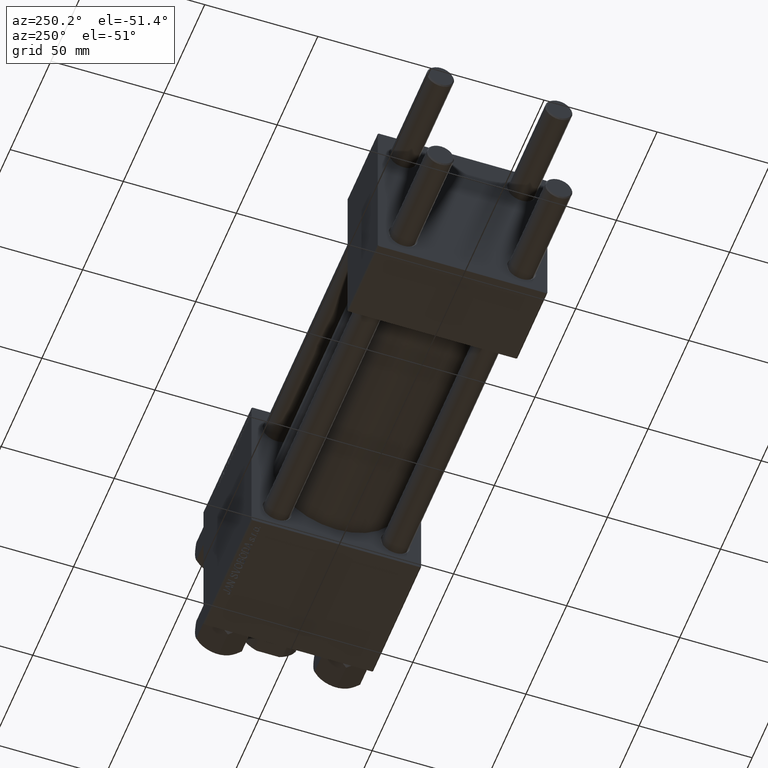
[diagram: clean part render]
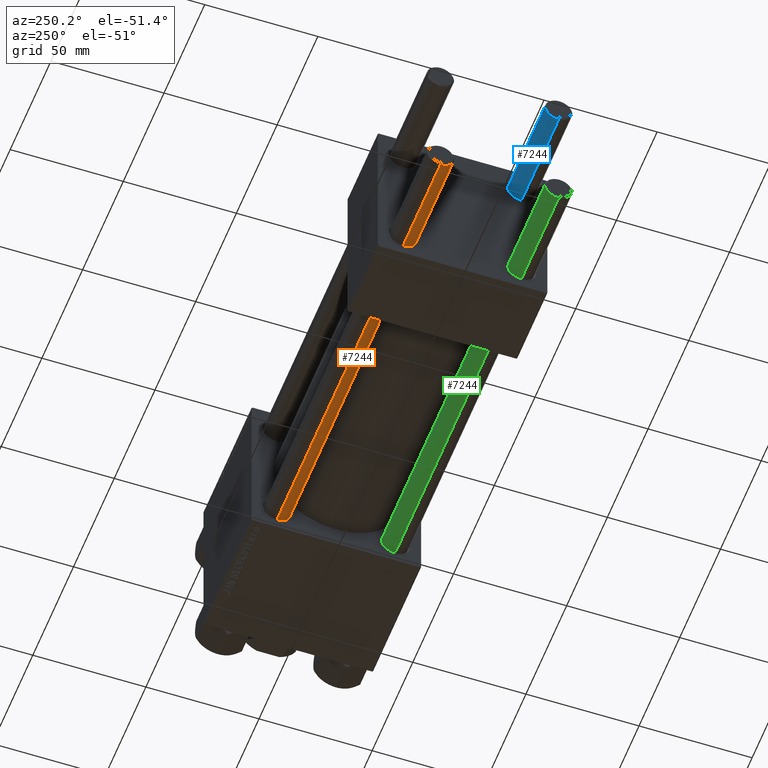
[diagram: same view with three faces highlighted in distinct colors, each labeled with its STEP entity id]
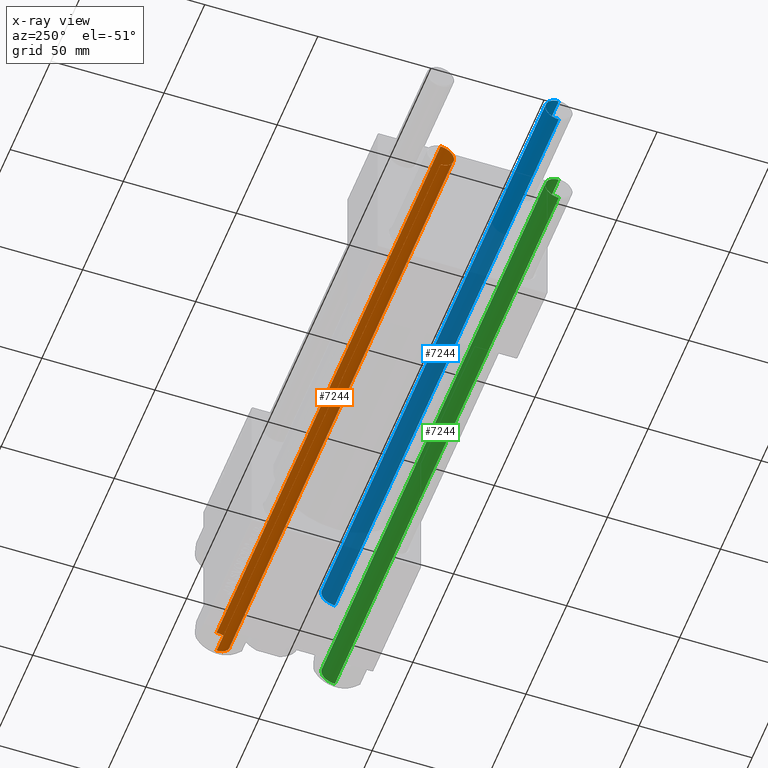
[diagram: x-ray of the same camera — body ghosted, the three highlighted faces saturated]
A machine part, auxiliary view with three faces highlighted in distinct colors.
The next image is the same camera in x-ray (body ghosted, the three faces saturated) — at least one of them is partly hidden behind the body in this view.
Their STEP definitions:

[orange] entity #7244 — the highlighted cylindrical surface (edge-blend (fillet) strip) has radius 6 mm, axis along (1, 0, -0).
#2418 = VERTEX_POINT ( 'NONE', #23354 ) ;
#2897 = CARTESIAN_POINT ( 'NONE',  ( 0.000000000000000000, 0.000000000000000000, 0.5000000000000559552 ) ) ;
#3306 = DIRECTION ( 'NONE',  ( -1.000000000000000000, 0.000000000000000000, 0.000000000000000000 ) ) ;
#5189 = CARTESIAN_POINT ( 'NONE',  ( 6.000000000000000888, 7.347880794884120722E-16, 276.0000000000000000 ) ) ;
#6727 = DIRECTION ( 'NONE',  ( -0.000000000000000000, -0.000000000000000000, -1.000000000000000000 ) ) ;
#7244 = ADVANCED_FACE ( 'NONE', ( #37754 ), #45790, .T. ) ;
#7384 = VECTOR ( 'NONE', #9194, 1000.000000000000000 ) ;
#7574 = VECTOR ( 'NONE', #6727, 1000.000000000000000 ) ;
#8718 = EDGE_CURVE ( 'NONE', #31630, #44112, #28827, .T. ) ;
#9194 = DIRECTION ( 'NONE',  ( -0.000000000000000000, -0.000000000000000000, -1.000000000000000000 ) ) ;
#10105 = VERTEX_POINT ( 'NONE', #26461 ) ;
#10369 = DIRECTION ( 'NONE',  ( 0.000000000000000000, 0.000000000000000000, -1.000000000000000000 ) ) ;
#12651 = ORIENTED_EDGE ( 'NONE', *, *, #8718, .F. ) ;
#14281 = LINE ( 'NONE', #44457, #7574 ) ;
#14866 = EDGE_CURVE ( 'NONE', #31630, #10105, #40529, .T. ) ;
#15722 = EDGE_CURVE ( 'NONE', #2418, #44112, #21353, .T. ) ;
#18946 = AXIS2_PLACEMENT_3D ( 'NONE', #2897, #33327, #21296 ) ;
#19053 = CARTESIAN_POINT ( 'NONE',  ( 6.000000000000000888, 7.347880794884120722E-16, 275.5000000000000568 ) ) ;
#19384 = EDGE_LOOP ( 'NONE', ( #12651, #22784, #41719, #24041 ) ) ;
#21296 = DIRECTION ( 'NONE',  ( 1.000000000000000000, 0.000000000000000000, 0.000000000000000000 ) ) ;
#21353 = CIRCLE ( 'NONE', #18946, 6.000000000000000888 ) ;
#22784 = ORIENTED_EDGE ( 'NONE', *, *, #14866, .T. ) ;
#23194 = CARTESIAN_POINT ( 'NONE',  ( 0.000000000000000000, 0.000000000000000000, 276.0000000000000000 ) ) ;
#23354 = CARTESIAN_POINT ( 'NONE',  ( -6.000000000000000888, 0.000000000000000000, 0.5000000000000559552 ) ) ;
#24041 = ORIENTED_EDGE ( 'NONE', *, *, #15722, .T. ) ;
#25737 = DIRECTION ( 'NONE',  ( 1.000000000000000000, 0.000000000000000000, 0.000000000000000000 ) ) ;
#25899 = EDGE_CURVE ( 'NONE', #10105, #2418, #14281, .T. ) ;
#26461 = CARTESIAN_POINT ( 'NONE',  ( -6.000000000000000888, 0.000000000000000000, 275.5000000000000568 ) ) ;
#27731 = AXIS2_PLACEMENT_3D ( 'NONE', #44819, #10369, #25737 ) ;
#28827 = LINE ( 'NONE', #5189, #7384 ) ;
#31593 = AXIS2_PLACEMENT_3D ( 'NONE', #23194, #42520, #3306 ) ;
#31630 = VERTEX_POINT ( 'NONE', #19053 ) ;
#31946 = CARTESIAN_POINT ( 'NONE',  ( 6.000000000000000888, 7.347880794884120722E-16, 0.5000000000000559552 ) ) ;
#33327 = DIRECTION ( 'NONE',  ( -0.000000000000000000, -0.000000000000000000, 1.000000000000000000 ) ) ;
#37754 = FACE_OUTER_BOUND ( 'NONE', #19384, .T. ) ;
#40529 = CIRCLE ( 'NONE', #27731, 6.000000000000000888 ) ;
#41719 = ORIENTED_EDGE ( 'NONE', *, *, #25899, .T. ) ;
#42520 = DIRECTION ( 'NONE',  ( -0.000000000000000000, -0.000000000000000000, -1.000000000000000000 ) ) ;
#44112 = VERTEX_POINT ( 'NONE', #31946 ) ;
#44457 = CARTESIAN_POINT ( 'NONE',  ( -6.000000000000000888, 0.000000000000000000, 276.0000000000000000 ) ) ;
#44819 = CARTESIAN_POINT ( 'NONE',  ( 0.000000000000000000, 0.000000000000000000, 275.5000000000000568 ) ) ;
#45790 = CYLINDRICAL_SURFACE ( 'NONE', #31593, 6.000000000000000888 ) ;

[blue] entity #7244 — the highlighted cylindrical surface (edge-blend (fillet) strip) has radius 6 mm, axis along (1, -0, 0).
#2418 = VERTEX_POINT ( 'NONE', #23354 ) ;
#2897 = CARTESIAN_POINT ( 'NONE',  ( 0.000000000000000000, 0.000000000000000000, 0.5000000000000559552 ) ) ;
#3306 = DIRECTION ( 'NONE',  ( -1.000000000000000000, 0.000000000000000000, 0.000000000000000000 ) ) ;
#5189 = CARTESIAN_POINT ( 'NONE',  ( 6.000000000000000888, 7.347880794884120722E-16, 276.0000000000000000 ) ) ;
#6727 = DIRECTION ( 'NONE',  ( -0.000000000000000000, -0.000000000000000000, -1.000000000000000000 ) ) ;
#7244 = ADVANCED_FACE ( 'NONE', ( #37754 ), #45790, .T. ) ;
#7384 = VECTOR ( 'NONE', #9194, 1000.000000000000000 ) ;
#7574 = VECTOR ( 'NONE', #6727, 1000.000000000000000 ) ;
#8718 = EDGE_CURVE ( 'NONE', #31630, #44112, #28827, .T. ) ;
#9194 = DIRECTION ( 'NONE',  ( -0.000000000000000000, -0.000000000000000000, -1.000000000000000000 ) ) ;
#10105 = VERTEX_POINT ( 'NONE', #26461 ) ;
#10369 = DIRECTION ( 'NONE',  ( 0.000000000000000000, 0.000000000000000000, -1.000000000000000000 ) ) ;
#12651 = ORIENTED_EDGE ( 'NONE', *, *, #8718, .F. ) ;
#14281 = LINE ( 'NONE', #44457, #7574 ) ;
#14866 = EDGE_CURVE ( 'NONE', #31630, #10105, #40529, .T. ) ;
#15722 = EDGE_CURVE ( 'NONE', #2418, #44112, #21353, .T. ) ;
#18946 = AXIS2_PLACEMENT_3D ( 'NONE', #2897, #33327, #21296 ) ;
#19053 = CARTESIAN_POINT ( 'NONE',  ( 6.000000000000000888, 7.347880794884120722E-16, 275.5000000000000568 ) ) ;
#19384 = EDGE_LOOP ( 'NONE', ( #12651, #22784, #41719, #24041 ) ) ;
#21296 = DIRECTION ( 'NONE',  ( 1.000000000000000000, 0.000000000000000000, 0.000000000000000000 ) ) ;
#21353 = CIRCLE ( 'NONE', #18946, 6.000000000000000888 ) ;
#22784 = ORIENTED_EDGE ( 'NONE', *, *, #14866, .T. ) ;
#23194 = CARTESIAN_POINT ( 'NONE',  ( 0.000000000000000000, 0.000000000000000000, 276.0000000000000000 ) ) ;
#23354 = CARTESIAN_POINT ( 'NONE',  ( -6.000000000000000888, 0.000000000000000000, 0.5000000000000559552 ) ) ;
#24041 = ORIENTED_EDGE ( 'NONE', *, *, #15722, .T. ) ;
#25737 = DIRECTION ( 'NONE',  ( 1.000000000000000000, 0.000000000000000000, 0.000000000000000000 ) ) ;
#25899 = EDGE_CURVE ( 'NONE', #10105, #2418, #14281, .T. ) ;
#26461 = CARTESIAN_POINT ( 'NONE',  ( -6.000000000000000888, 0.000000000000000000, 275.5000000000000568 ) ) ;
#27731 = AXIS2_PLACEMENT_3D ( 'NONE', #44819, #10369, #25737 ) ;
#28827 = LINE ( 'NONE', #5189, #7384 ) ;
#31593 = AXIS2_PLACEMENT_3D ( 'NONE', #23194, #42520, #3306 ) ;
#31630 = VERTEX_POINT ( 'NONE', #19053 ) ;
#31946 = CARTESIAN_POINT ( 'NONE',  ( 6.000000000000000888, 7.347880794884120722E-16, 0.5000000000000559552 ) ) ;
#33327 = DIRECTION ( 'NONE',  ( -0.000000000000000000, -0.000000000000000000, 1.000000000000000000 ) ) ;
#37754 = FACE_OUTER_BOUND ( 'NONE', #19384, .T. ) ;
#40529 = CIRCLE ( 'NONE', #27731, 6.000000000000000888 ) ;
#41719 = ORIENTED_EDGE ( 'NONE', *, *, #25899, .T. ) ;
#42520 = DIRECTION ( 'NONE',  ( -0.000000000000000000, -0.000000000000000000, -1.000000000000000000 ) ) ;
#44112 = VERTEX_POINT ( 'NONE', #31946 ) ;
#44457 = CARTESIAN_POINT ( 'NONE',  ( -6.000000000000000888, 0.000000000000000000, 276.0000000000000000 ) ) ;
#44819 = CARTESIAN_POINT ( 'NONE',  ( 0.000000000000000000, 0.000000000000000000, 275.5000000000000568 ) ) ;
#45790 = CYLINDRICAL_SURFACE ( 'NONE', #31593, 6.000000000000000888 ) ;

[green] entity #7244 — the highlighted cylindrical surface (edge-blend (fillet) strip) has radius 6 mm, axis along (-1, 0, 0).
#2418 = VERTEX_POINT ( 'NONE', #23354 ) ;
#2897 = CARTESIAN_POINT ( 'NONE',  ( 0.000000000000000000, 0.000000000000000000, 0.5000000000000559552 ) ) ;
#3306 = DIRECTION ( 'NONE',  ( -1.000000000000000000, 0.000000000000000000, 0.000000000000000000 ) ) ;
#5189 = CARTESIAN_POINT ( 'NONE',  ( 6.000000000000000888, 7.347880794884120722E-16, 276.0000000000000000 ) ) ;
#6727 = DIRECTION ( 'NONE',  ( -0.000000000000000000, -0.000000000000000000, -1.000000000000000000 ) ) ;
#7244 = ADVANCED_FACE ( 'NONE', ( #37754 ), #45790, .T. ) ;
#7384 = VECTOR ( 'NONE', #9194, 1000.000000000000000 ) ;
#7574 = VECTOR ( 'NONE', #6727, 1000.000000000000000 ) ;
#8718 = EDGE_CURVE ( 'NONE', #31630, #44112, #28827, .T. ) ;
#9194 = DIRECTION ( 'NONE',  ( -0.000000000000000000, -0.000000000000000000, -1.000000000000000000 ) ) ;
#10105 = VERTEX_POINT ( 'NONE', #26461 ) ;
#10369 = DIRECTION ( 'NONE',  ( 0.000000000000000000, 0.000000000000000000, -1.000000000000000000 ) ) ;
#12651 = ORIENTED_EDGE ( 'NONE', *, *, #8718, .F. ) ;
#14281 = LINE ( 'NONE', #44457, #7574 ) ;
#14866 = EDGE_CURVE ( 'NONE', #31630, #10105, #40529, .T. ) ;
#15722 = EDGE_CURVE ( 'NONE', #2418, #44112, #21353, .T. ) ;
#18946 = AXIS2_PLACEMENT_3D ( 'NONE', #2897, #33327, #21296 ) ;
#19053 = CARTESIAN_POINT ( 'NONE',  ( 6.000000000000000888, 7.347880794884120722E-16, 275.5000000000000568 ) ) ;
#19384 = EDGE_LOOP ( 'NONE', ( #12651, #22784, #41719, #24041 ) ) ;
#21296 = DIRECTION ( 'NONE',  ( 1.000000000000000000, 0.000000000000000000, 0.000000000000000000 ) ) ;
#21353 = CIRCLE ( 'NONE', #18946, 6.000000000000000888 ) ;
#22784 = ORIENTED_EDGE ( 'NONE', *, *, #14866, .T. ) ;
#23194 = CARTESIAN_POINT ( 'NONE',  ( 0.000000000000000000, 0.000000000000000000, 276.0000000000000000 ) ) ;
#23354 = CARTESIAN_POINT ( 'NONE',  ( -6.000000000000000888, 0.000000000000000000, 0.5000000000000559552 ) ) ;
#24041 = ORIENTED_EDGE ( 'NONE', *, *, #15722, .T. ) ;
#25737 = DIRECTION ( 'NONE',  ( 1.000000000000000000, 0.000000000000000000, 0.000000000000000000 ) ) ;
#25899 = EDGE_CURVE ( 'NONE', #10105, #2418, #14281, .T. ) ;
#26461 = CARTESIAN_POINT ( 'NONE',  ( -6.000000000000000888, 0.000000000000000000, 275.5000000000000568 ) ) ;
#27731 = AXIS2_PLACEMENT_3D ( 'NONE', #44819, #10369, #25737 ) ;
#28827 = LINE ( 'NONE', #5189, #7384 ) ;
#31593 = AXIS2_PLACEMENT_3D ( 'NONE', #23194, #42520, #3306 ) ;
#31630 = VERTEX_POINT ( 'NONE', #19053 ) ;
#31946 = CARTESIAN_POINT ( 'NONE',  ( 6.000000000000000888, 7.347880794884120722E-16, 0.5000000000000559552 ) ) ;
#33327 = DIRECTION ( 'NONE',  ( -0.000000000000000000, -0.000000000000000000, 1.000000000000000000 ) ) ;
#37754 = FACE_OUTER_BOUND ( 'NONE', #19384, .T. ) ;
#40529 = CIRCLE ( 'NONE', #27731, 6.000000000000000888 ) ;
#41719 = ORIENTED_EDGE ( 'NONE', *, *, #25899, .T. ) ;
#42520 = DIRECTION ( 'NONE',  ( -0.000000000000000000, -0.000000000000000000, -1.000000000000000000 ) ) ;
#44112 = VERTEX_POINT ( 'NONE', #31946 ) ;
#44457 = CARTESIAN_POINT ( 'NONE',  ( -6.000000000000000888, 0.000000000000000000, 276.0000000000000000 ) ) ;
#44819 = CARTESIAN_POINT ( 'NONE',  ( 0.000000000000000000, 0.000000000000000000, 275.5000000000000568 ) ) ;
#45790 = CYLINDRICAL_SURFACE ( 'NONE', #31593, 6.000000000000000888 ) ;